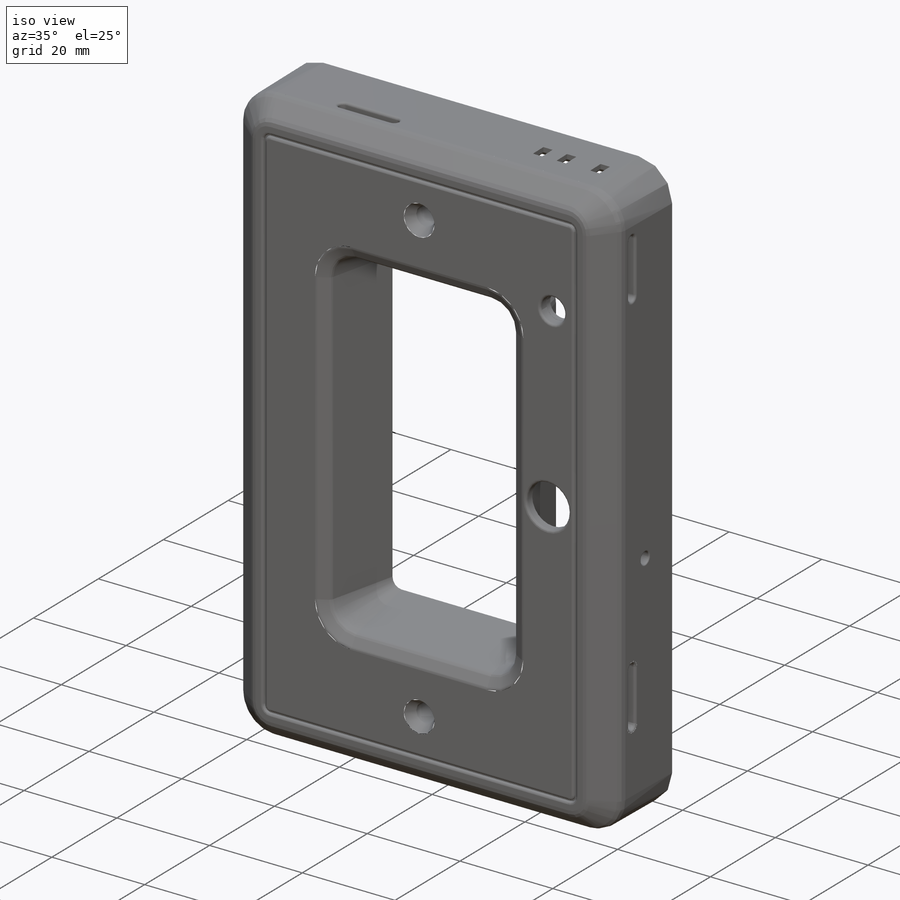
[diagram: iso view]
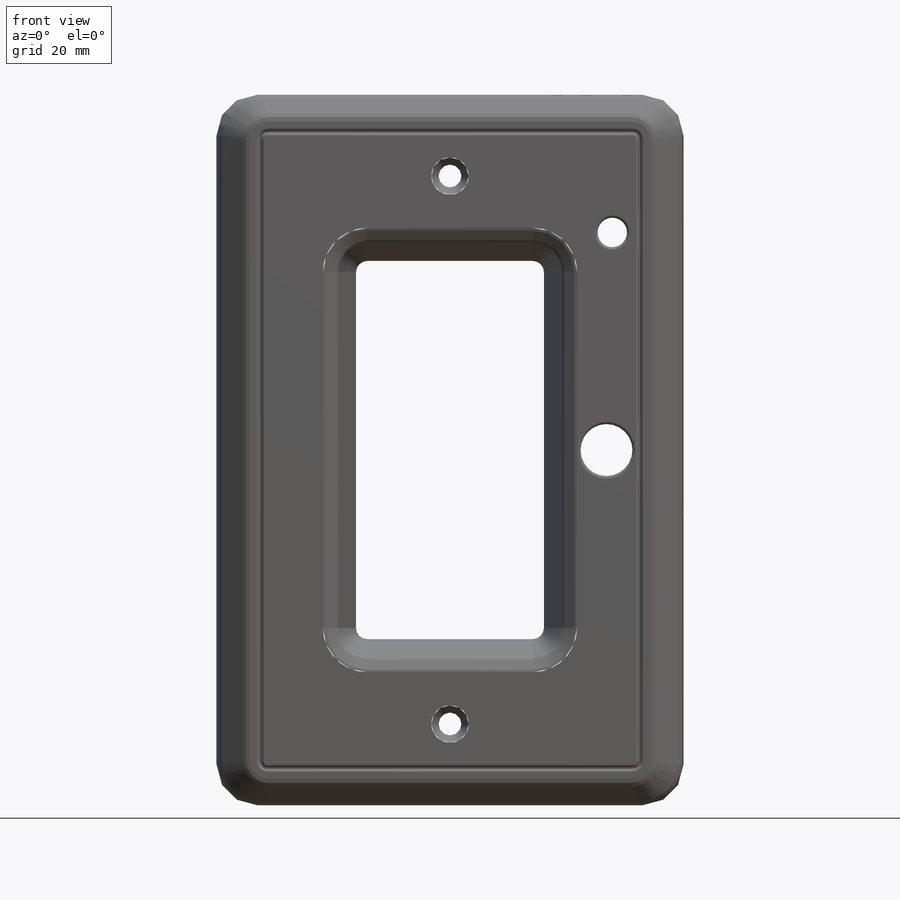
[diagram: front view]
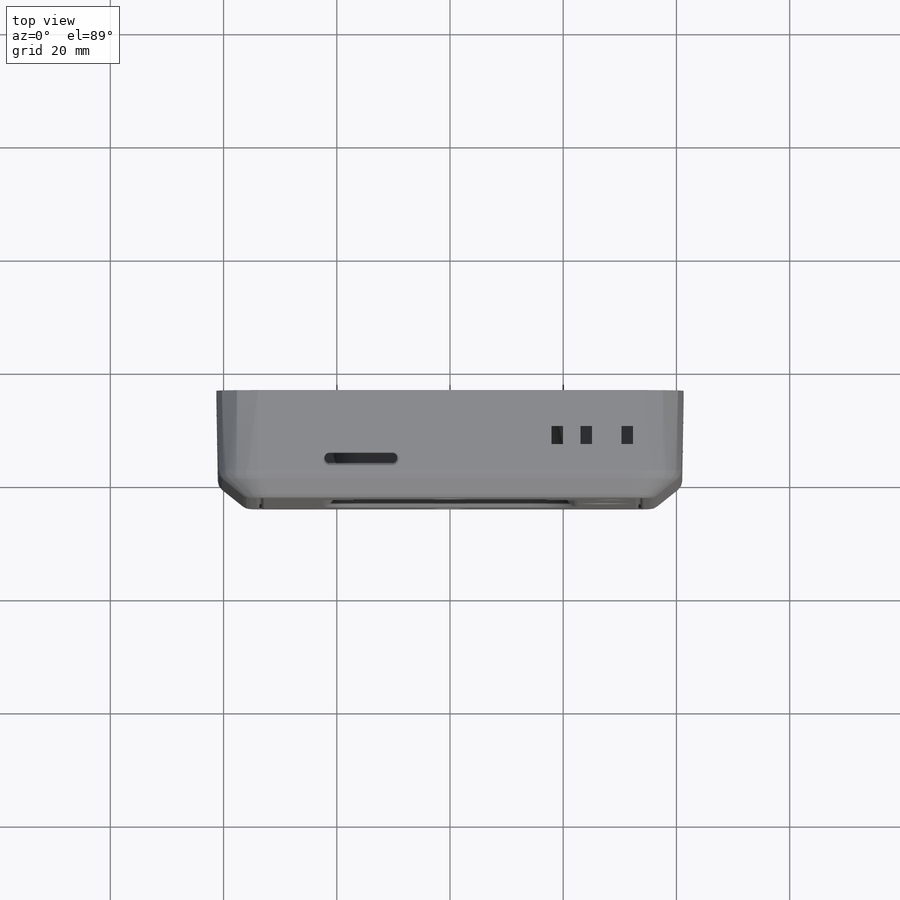
[diagram: top view]
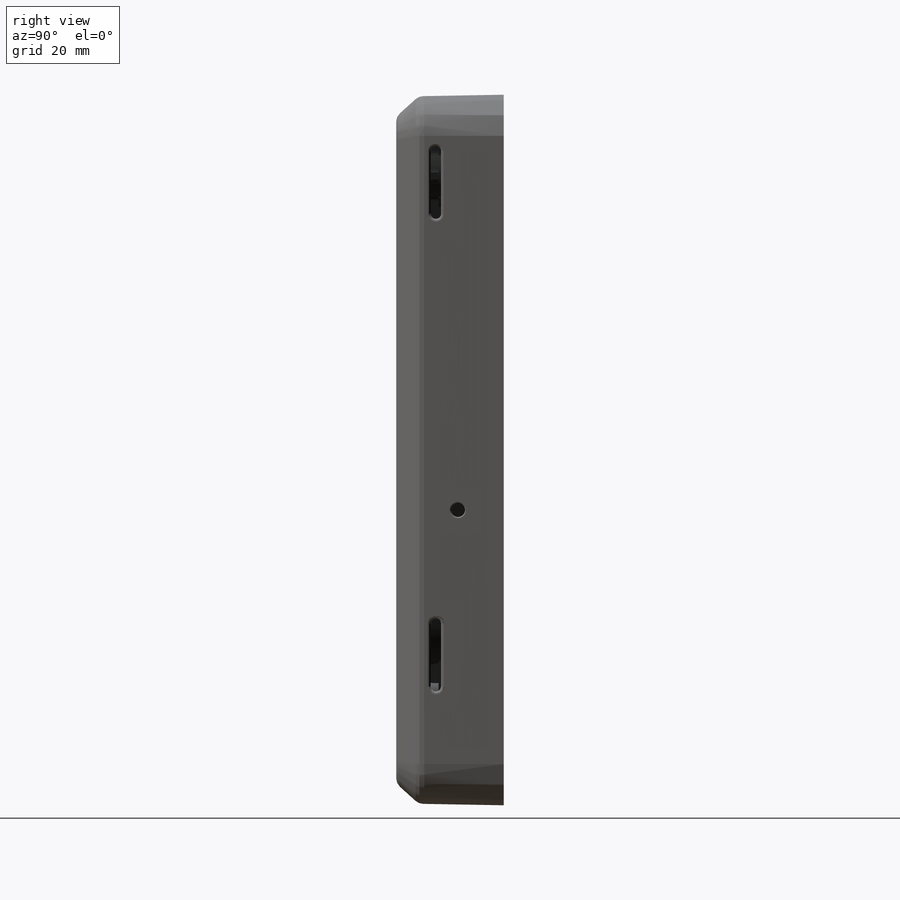
[diagram: right view]
SOLIDWORKS PART (.sldprt)
format: sldprt  version: not decoded by parser v0  size: 2,417,152 bytes
history: native  units: mm
features: sketch x39, fillet x32, cut_extrude x15, plane x11, chamfer x11, mirror x10, pattern_circular x9, extrude x8, shell x4, pattern_linear x4, material x1 (+10 scaffold rows collapsed)
feature tree (154):
  scaffold x10  (default folders/planes/origin — collapsed)
  material  "Material <not specified>"
  plane  "Спереди"
  plane  "Сверху"
  plane  "Справа"
  sketch  "Эскиз1"  dims[D3=7.0mm D1=125.0mm D2=82.0mm]
  plane  "Плоскость1"  Offset=4mm
  sketch  "Эскиз2"  dims[D3=4.0mm D1=5.0mm D2=3.6mm]
  sketch  "Эскиз3"  dims[D1=0.0mm]
  extrude  "Бобышка-Вытянуть1"  Depth=15mm
  fillet  "Скругление1"  Radius=2mm
  sketch  "Эскиз6"
  cut_extrude  "Вырез-Вытянуть2"  Depth=3.5mm
  sketch  "Эскиз5"  dims[D3=2.0mm D1=33.2mm D2=66.8mm]
  cut_extrude  "Вырез-Вытянуть1"  [1 undecoded]
  chamfer  "Фаска1"  Distance=2mm Angle=30deg
  fillet  "Скругление3"  Radius=1mm
  shell  "Оболочка2"  Thickness=2mm
  sketch  "Эскиз4"  dims[c1.D1=1.8mm c2.D1=0.5mm c2.D5=0.3mm c2.D6=10.0mm c2.D7=5.0mm]
  fillet  "Скругление2"  Radius=0.5mm
  sketch  "Эскиз7"  dims[D1=9.2mm D2=~1.902876mm]
  cut_extrude  "Вырез-Вытянуть3"  Depth=3.5mm
  fillet  "Скругление4"  Radius=0.5mm
  sketch  "Эскиз8"  dims[c1.D1=1.8mm c1.D2=11.0mm c1.D3=10.0mm c1.D4=7.0mm c2.D3=24.5mm]
  cut_extrude  "Вырез-Вытянуть4"  Depth=36.5mm
  fillet  "Скругление5"  Radius=0.5mm
  plane  "Плоскость2"
  mirror  "Зеркальное отражение2"
  sketch  "Эскиз9"  dims[D2=4.0mm D1=48.4mm]
  cut_extrude  "Вырез-Вытянуть5"  Depth=5mm
  sketch  "Эскиз11"  dims[D1=7.5mm]
  extrude  "Бобышка-Вытянуть2"  Depth=0.3mm
  chamfer  "Фаска4"  Distance=1mm Angle=45deg
  sketch  "Эскиз12"  dims[c1.D1=8.0mm c2.D1=5.5mm c2.D3=1.0deg c2.D5=1.4mm c2.D6=1.0mm c2.D7=5.0mm]
  chamfer  "Фаска5"  Distance=2mm Angle=45deg
  fillet  "Скругление7"  Radius=1mm
  chamfer  "Фаска2"  Distance=1.3mm
  pattern_circular  "Круговой массив1"  Count=4 Angle=90deg
  mirror  "Зеркальное отражение3"
  plane  "Плоскость3"  Offset=28mm
  sketch  "Эскиз13"  dims[c1.D1=14.55mm c1.D3=14.55mm c1.D2=31.2mm c2.D3=9.5mm c2.D4=7.375mm c2.D5=1.0mm c2.D6=13.2mm c2.D7=~14.979158mm c3.D7=0.5deg]
  pattern_circular  "Вытянуть-Тонкостенный2"  Angle=1deg  [1 undecoded]
  fillet  "Скругление9"  Radius=2mm
  chamfer  "Фаска6"  Distance=1mm Angle=45deg
  fillet  "Скругление10"  Radius=0.5mm
  fillet  "Скругление12"  Radius=1mm
  fillet  "Скругление15"  Radius=0.5mm
  fillet  "Скругление6"  Radius=1mm
  sketch  "Эскиз10"  dims[c1.D1=1.95mm c1.D2=0.34mm c1.D3=3.15mm c2.D2=9.0mm c2.D4=6.4mm]
  cut_extrude  "Вырез-Вытянуть7"  Depth=5mm
  chamfer  "Фаска3"  Distance=1mm Angle=45deg
  pattern_linear  "Линейный массив1"  Count1=3 Count2=1 Spacing1=8mm Spacing2=10mm
  plane  "Плоскость4"  Offset=16mm
  sketch  "Эскиз14"  dims[c1.D1=1.5mm c1.D2=2.0mm c1.D3=~9.67324mm c2.D3=93.0deg]
  extrude  "Бобышка-Вытянуть3"  Depth=1.5mm
  fillet  "Скругление16"  Radius=50mm
  mirror  "Зеркальное отражение4"
  plane  "Плоскость5"  Offset=24.25mm
  sketch  "Эскиз15"  dims[D1=7.0mm D2=2.5mm]
  extrude  "Бобышка-Вытянуть4"  Depth=1.5mm
  chamfer  "Фаска7"  Distance=1mm Angle=45deg
  fillet  "Скругление17"  Radius=0.5mm
  plane  "Плоскость6"  Offset=48.7mm
  sketch  "Эскиз16"  dims[c1.D1=1.0mm c1.D2=~16.838812mm c2.D2=95.0deg]
  extrude  "Бобышка-Вытянуть5"  Depth=1.5mm
  chamfer  "Фаска8"  Distance=2mm Angle=45deg
  fillet  "Скругление18"  Radius=1mm
  mirror  "Зеркальное отражение5"
  sketch  "Эскиз17"  dims[D1=2.4mm D2=5.6mm]
  extrude  "Бобышка-Вытянуть6"  Depth=5.5mm
  sketch  "Эскиз18"
  pattern_circular  "Вытянуть-Тонкостенный3"  Angle=1deg  [1 undecoded]
  mirror  "Зеркальное отражение6"
  sketch  "Эскиз19"  dims[D1=4.0mm D2=4.0mm]
  pattern_circular  "Вытянуть-Тонкостенный4"  Angle=0.5deg  [1 undecoded]
  fillet  "Скругление19"  Radius=0.5mm
  mirror  "Зеркальное отражение8"
  plane  "Плоскость7"
  plane  "Плоскость8"
  sketch  "Эскиз20"  dims[c1.D1=~63.999878mm c2.D1=45.0deg c2.D2=18.0mm c2.D3=4.0mm]
  shell  "Вырез-Вытянуть-Тонкостенный2"  Thickness=3mm
  fillet  "Скругление20"  Radius=1.5mm
  sketch  "Эскиз21"  dims[D1=5.0mm D2=5.0mm D3=8.0mm]
  shell  "Вырез-Вытянуть-Тонкостенный3"  Thickness=10mm
  fillet  "Скругление21"  Radius=1.5mm
  fillet  "Скругление22"  Radius=0.5mm
  sketch  "Эскиз22"  dims[D1=0.0mm]
  sketch  "Эскиз23"  dims[c1.D1=2.4mm c1.D2=5.6mm c1.D3=~9.165093mm c1.D4=~9.165093mm c2.D3=~43.911024mm c2.D4=~1.292188mm]
  extrude  "Бобышка-Вытянуть7"  [1 undecoded]
  sketch  "Эскиз24"  dims[D1=~6.619538mm]
  pattern_circular  "Вытянуть-Тонкостенный5"  Angle=1deg  [1 undecoded]
  sketch  "Эскиз25"  dims[D1=6.0mm]
  cut_extrude  "Вырез-Вытянуть8"  [1 undecoded]
  chamfer  "Фаска9"  Distance=2mm Angle=45deg
  fillet  "Скругление23"  Radius=1mm
  fillet  "Скругление24"  Radius=1mm
  pattern_linear  "Линейный массив2"  Count1=2 Count2=1 Spacing1=7.24mm Spacing2=10mm
  pattern_linear  "Линейный массив3"  Count1=2 Count2=1 Spacing1=12.34mm Spacing2=10mm
  sketch  "Эскиз26"  dims[D1=2.4mm D2=2.5mm D4=2.5mm D3=8.85mm]
  cut_extrude  "Вырез-Вытянуть9"  Depth=10mm
  fillet  "Скругление25"  Radius=0.25mm
  sketch  "Эскиз27"  dims[c1.D1=4.0mm c1.D2=~13.130485mm c2.D2=35.0deg c2.D3=~6.579634mm c2.D1=4.0mm]
  shell  "Вырез-Вытянуть-Тонкостенный4"  Thickness=6mm
  fillet  "Скругление26"  Radius=1mm
  fillet  "Скругление27"  Radius=0.3mm
  sketch  "Эскиз28"
  pattern_circular  "Вытянуть-Тонкостенный6"  Angle=1deg  [1 undecoded]
  fillet  "Скругление28"  Radius=1mm
  sketch  "Эскиз29"  dims[D2=9.0mm D3=53.0mm D1=0.0mm]
  pattern_circular  "Вытянуть-Тонкостенный7"  Angle=0.5deg  [1 undecoded]
  mirror  "Зеркальное отражение9"
  fillet  "Скругление32"  Radius=0.5mm
  sketch  "Эскиз30"  dims[D1=11.0mm]
  cut_extrude  "Вырез-Вытянуть10"  Depth=0.1mm
  sketch  "Эскиз31"  dims[D1=2.5mm]
  cut_extrude  "Вырез-Вытянуть11"  Depth=2mm
  sketch  "Эскиз32"  dims[c1.D1=5.0mm c1.D2=5.0mm c2.D1=0.0mm]
  pattern_circular  "Вытянуть-Тонкостенный8"  Angle=1deg  [1 undecoded]
  mirror  "Зеркальное отражение10"
  sketch  "Эскиз33"  dims[D1=11.0mm D2=1.8mm D3=7.0mm D4=20.0mm]
  cut_extrude  "Вырез-Вытянуть12"  Depth=10mm
  fillet  "Скругление33"  Radius=0.5mm
  sketch  "Sketch1"  dims[c1.D2=~3.399998mm c1.D3=2.0mm c1.D1=9.67mm c2.D2=4.875mm]
  cut_extrude  "Cut-Extrude1"  Depth=10mm
  fillet  "Fillet1"  Radius=0.5mm
  sketch  "Sketch2"
  cut_extrude  "Cut-Extrude2"  Depth=6.8mm
  mirror  "Mirror1"
  fillet  "Fillet2"  Radius=0.5mm
  fillet  "Fillet3"  Radius=0.5mm
  sketch  "Sketch3"  dims[D1=1.8mm D2=11.0mm D3=7.0mm D4=10.0mm]
  cut_extrude  "Cut-Extrude3"  Depth=10mm
  fillet  "Fillet4"  Radius=0.5mm
  pattern_linear  "LPattern1"  Count1=2 Count2=1 Spacing1=83.5mm Spacing2=10mm
  sketch  "Sketch4"  dims[c1.D1=5.25mm c1.D2=5.2mm c1.D3=~2.495996mm c2.D2=7.03mm c2.D3=0.29mm]
  cut_extrude  "Cut-Extrude4"  Depth=10mm
  fillet  "Fillet5"  Radius=0.5mm
  sketch  "Sketch5"  dims[D1=8.0mm]
  extrude  "Boss-Extrude1"  Depth=1.4mm
  chamfer  "Chamfer1"  Distance=0.25mm Angle=45deg
  chamfer  "Chamfer2"  Distance=3mm Angle=68deg
  sketch  "Sketch6"
  pattern_circular  "Extrude-Thin1"  Angle=1.5deg  [1 undecoded]
  fillet  "Fillet6"  Radius=1mm
  mirror  "Mirror2"
decode coverage: 114 of 132 modeling features carry decoded parameters
note: ~ marks probable driven/reference dimensions
note: 11 parameter values undecoded
summary: no parameter record found for 3 features
note: suppression state not decoded; provenance and decode notes live in map.json
